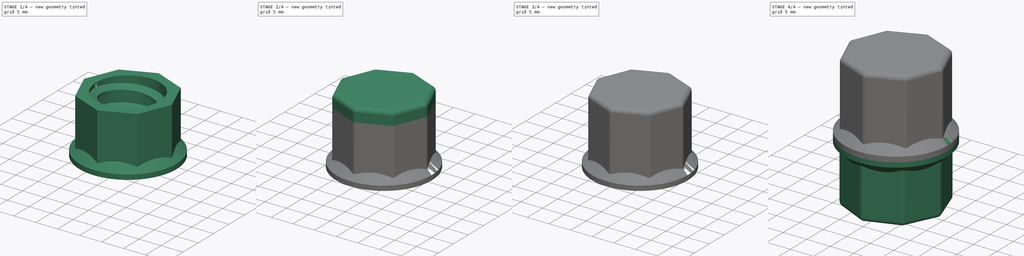
[diagram: build sequence overview — one tinted view per stage of 4, left to right]
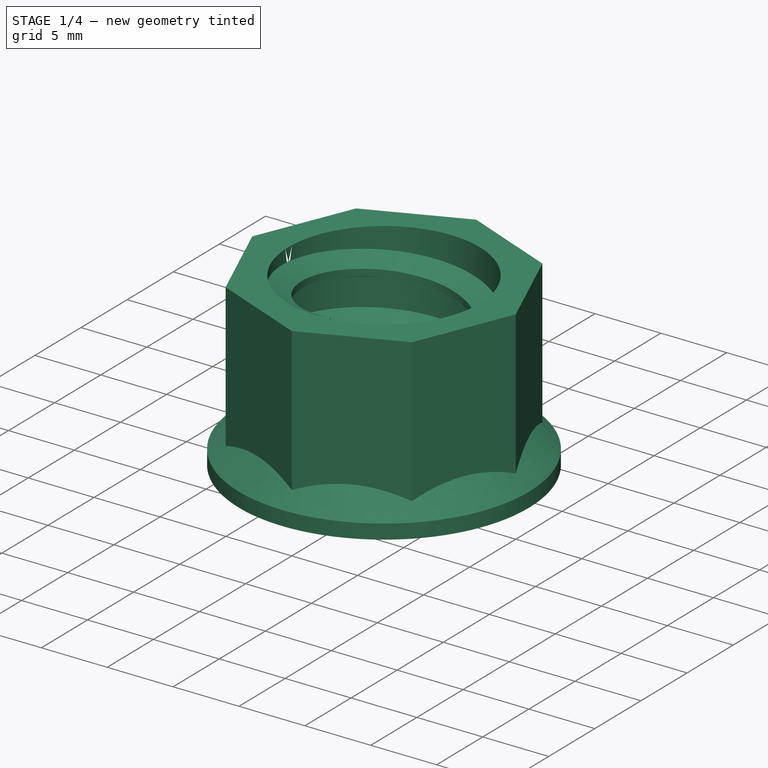
[diagram: stage 1 of 4 — iso view after this stage's code; geometry added in this stage tinted green]
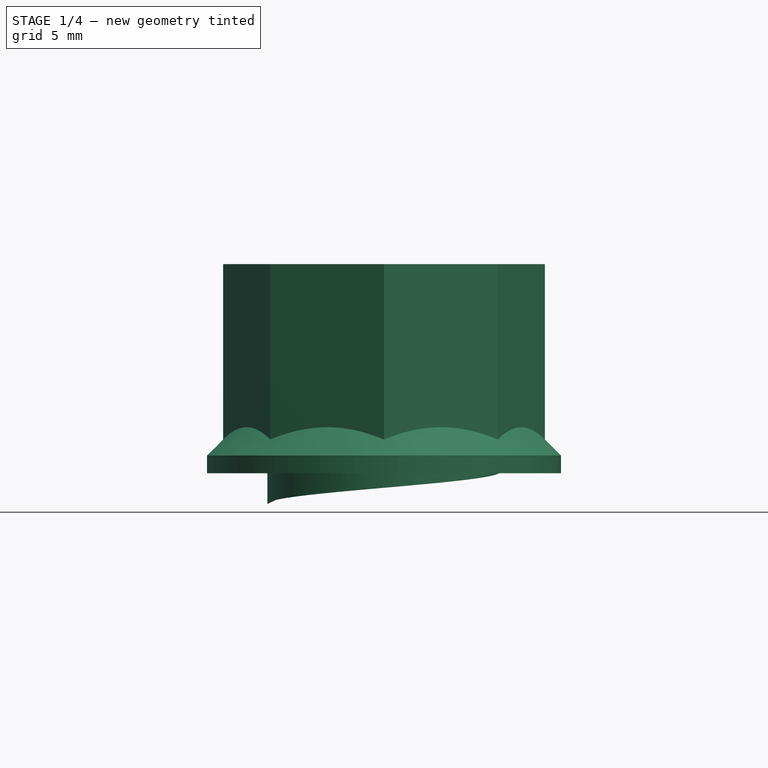
[diagram: stage 1 of 4 — front view after this stage's code; geometry added in this stage tinted green]
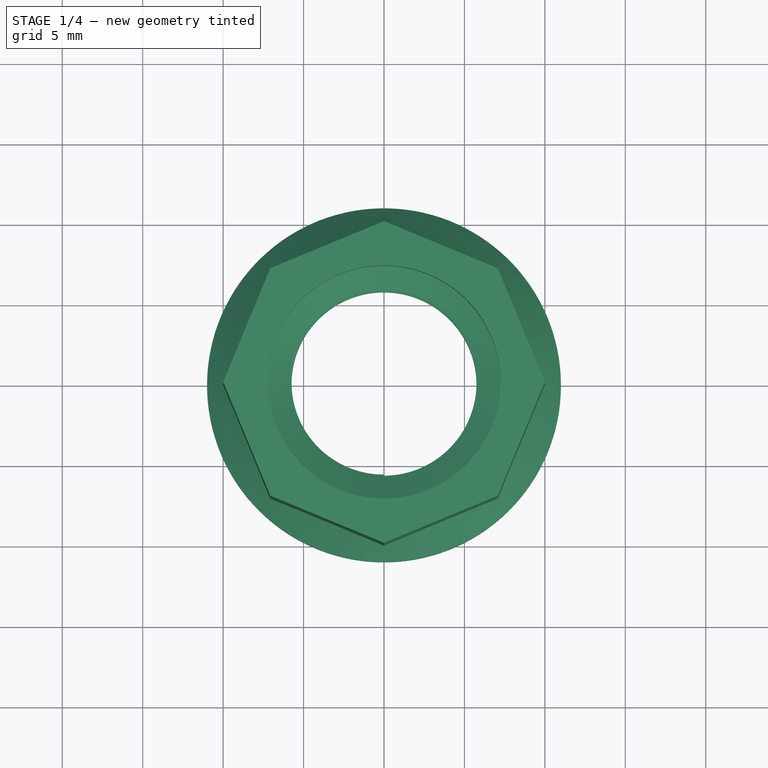
[diagram: stage 1 of 4 — top view after this stage's code; geometry added in this stage tinted green]
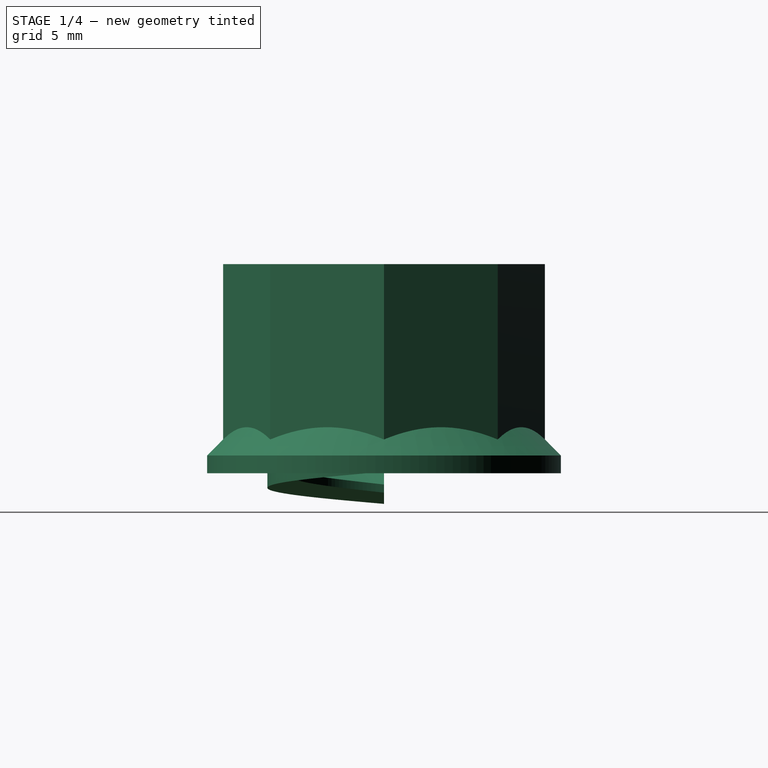
[diagram: stage 1 of 4 — right view after this stage's code; geometry added in this stage tinted green]
FCSTD DOCUMENT  (FreeCAD 2023.131R26244 +5365 (Git))
Label: Presto Pressure Cooker Hole Plug
License: All rights reserved
LicenseURL: http://en.wikipedia.org/wiki/All_rights_reserved
objects: Sketcher::SketchObject×9, PartDesign::Pad×6, PartDesign::Chamfer×3, PartDesign::Fillet×2, PartDesign::Body×2, Spreadsheet::Sheet×1, PartDesign::SubtractiveHelix×1, PartDesign::AdditiveHelix×1, PartDesign::Pocket×1
note: 62 computed .brp shape members not serialized (recipe doc carries the construction recipe); baked Part::Feature solids carry a one-line shape summary decoded from their .brp

FEATURE [Sketcher::SketchObject] Sketch004
  ArcFitTolerance = 1e-06
  AttachmentSupport = -> [XY_Plane001]
  ExternalBSplineMaxDegree = 5
  ExternalBSplineTolerance = 0.0001
  FullyConstrained = true
  InternalTolerance = 1e-06
  InvalidShape = false
  MakeInternals = false
  MapMode = 5
  Support = -> [XY_Plane001]
  TreeRank = 36
  ValidateShape = true
  expr: Constraints[1] = <<Parameters>>.washer_diameter
  expr: Constraints[3] = <<Parameters>>.shaft_diameter + <<Parameters>>.thread_tolerance
  sketch-geometry (2):
    g0: Circle CenterX=0 CenterY=0 CenterZ=0 NormalX=0 NormalY=0 NormalZ=1 AngleXU=0 Radius=11
    g1: Circle CenterX=0 CenterY=0 CenterZ=0 NormalX=0 NormalY=0 NormalZ=1 AngleXU=0 Radius=7.25
  constraints (4):
    c: Coincident(g0,g-1)
    c: Diameter(g0) = 22
    c: Coincident(g1,g0)
    c: Diameter(g1) = 14.5
FEATURE [PartDesign::Pad] Pad003
  AddSubType = 0
  AlongSketchNormal = false
  AutoTaperInnerAngle = true
  CheckUpToFaceLimits = true
  ClaimChildren = false
  Direction = (0,0,1)
  Fit = 0
  FitJoin = 0
  InnerFit = 0
  InnerFitJoin = 0
  InvalidShape = false
  Length = 3
  Length2 = 100
  Linearize = true
  NewSolid = false
  Profile = -> Sketch004
  Suppress = false
  TaperInnerAngle = 0
  TaperInnerAngleRev = 0
  TreeRank = 37
  Type = 0
  ValidateShape = true
  _ProfileBasedVersion = 1
  expr: Length = <<Parameters>>.washer_thickness
FEATURE [Sketcher::SketchObject] Sketch005
  ArcFitTolerance = 1e-06
  AttachmentSupport = -> [XY_Plane001]
  ExternalBSplineMaxDegree = 5
  ExternalBSplineTolerance = 0.0001
  FullyConstrained = true
  InternalTolerance = 1e-06
  InvalidShape = false
  MakeInternals = false
  MapMode = 5
  Support = -> [XY_Plane001]
  TreeRank = 38
  ValidateShape = true
  expr: Constraints[24] = <<Parameters>>.washer_diameter - 2
  expr: Constraints[26] = <<Parameters>>.shaft_diameter + <<Parameters>>.thread_tolerance
  sketch-geometry (10):
    g0: LineSegment StartX=-7.07107 StartY=7.07107 StartZ=0 EndX=-10 EndY=9e-16 EndZ=0
    g1: LineSegment StartX=-10 StartY=7e-16 StartZ=0 EndX=-7.07107 EndY=-7.07107 EndZ=0
    g2: LineSegment StartX=-7.07107 StartY=-7.07107 StartZ=0 EndX=-9e-16 EndY=-10 EndZ=0
    g3: LineSegment StartX=-8e-16 StartY=-10 StartZ=0 EndX=7.07107 EndY=-7.07107 EndZ=0
    g4: LineSegment StartX=7.07107 StartY=-7.07107 StartZ=0 EndX=10 EndY=0 EndZ=0
    g5: LineSegment StartX=10 StartY=0 StartZ=0 EndX=7.07107 EndY=7.07107 EndZ=0
    g6: LineSegment StartX=7.07107 StartY=7.07107 StartZ=0 EndX=0 EndY=10 EndZ=0
    g7: LineSegment StartX=0 StartY=10 StartZ=0 EndX=-7.07107 EndY=7.07107 EndZ=0
    g8: Circle [constr] CenterX=0 CenterY=0 CenterZ=0 NormalX=0 NormalY=0 NormalZ=1 AngleXU=0 Radius=10
    g9: Circle CenterX=0 CenterY=0 CenterZ=0 NormalX=0 NormalY=0 NormalZ=1 AngleXU=0 Radius=7.25
  constraints (22):
    c: Coincident(g0,g1)
    c: Coincident(g1,g2)
    c: Coincident(g2,g3)
    c: Coincident(g3,g4)
    c: Coincident(g4,g5)
    c: Coincident(g5,g6)
    c: Coincident(g6,g7)
    c: Coincident(g7,g0)
    c: Equal(g0, g1-g7) x7
    c: PointOnObject(g0,g8)
    c: PointOnObject(g1,g8)
    c: PointOnObject(g2,g8)
    c: PointOnObject(g3,g8)
    c: PointOnObject(g4,g8)
    c: PointOnObject(g5,g8)
    c: PointOnObject(g6,g8)
    c: PointOnObject(g7,g8)
    c: Coincident(g8,g-1)
    c: Diameter(g8) = 20
    c: Coincident(g9,g8)
    c: Diameter(g9) = 14.5
    c: PointOnObject(g6,g-2)
FEATURE [PartDesign::Chamfer] Chamfer002
  AddSubType = 0
  Angle = 45
  Base = -> Pad003 [Edge3]
  BaseFeature = -> Pad003
  ChamferType = 0
  FlipDirection = false
  InvalidShape = false
  NewSolid = false
  Size = 1.9
  Size2 = 1
  SupportTransform = false
  Suppress = false
  TreeRank = 43
  ValidateShape = true
FEATURE [PartDesign::Pad] Pad004
  AddSubType = 0
  AlongSketchNormal = false
  AutoTaperInnerAngle = true
  BaseFeature = -> Chamfer002
  CheckUpToFaceLimits = true
  ClaimChildren = false
  Direction = (0,0,1)
  Fit = 0
  FitJoin = 0
  InnerFit = 0
  InnerFitJoin = 0
  InvalidShape = false
  Length = 13
  Length2 = 100
  Linearize = true
  NewSolid = false
  Profile = -> Sketch005
  Suppress = false
  TaperInnerAngle = 0
  TaperInnerAngleRev = 0
  TreeRank = 44
  Type = 0
  ValidateShape = true
  _ProfileBasedVersion = 1
  expr: Length = <<Parameters>>.washer_thickness + <<Parameters>>.head_thickness
FEATURE [Sketcher::SketchObject] Sketch006
  ArcFitTolerance = 1e-06
  AttachmentSupport = -> [XZ_Plane001]
  ExternalBSplineMaxDegree = 5
  ExternalBSplineTolerance = 0.0001
  FullyConstrained = true
  InternalTolerance = 1e-06
  InvalidShape = false
  MakeInternals = false
  MapMode = 5
  Placement = pos=(0,0,0) rot=(1,0,0;1.5708rad)
  Support = -> [XZ_Plane001]
  TreeRank = 50
  ValidateShape = true
  expr: Constraints[10] = (<<Parameters>>.shaft_diameter + <<Parameters>>.thread_tolerance) / 2
  expr: Constraints[7] = <<Parameters>>.thread_depth
  expr: Constraints[8] = <<Parameters>>.thread_pitch / 2.1
  expr: Constraints[9] = 90 - <<Parameters>>.thread_angle
  sketch-geometry (4):
    g0: LineSegment StartX=-7.25 StartY=-1.90476 StartZ=0 EndX=-7.25 EndY=0 EndZ=0
    g1: LineSegment StartX=-7.25 StartY=0 StartZ=0 EndX=-5.75 EndY=-0.699461 EndZ=0
    g2: LineSegment StartX=-7.25 StartY=-1.90476 StartZ=0 EndX=-5.75 EndY=-1.2053 EndZ=0
    g3: LineSegment StartX=-5.75 StartY=-1.2053 StartZ=0 EndX=-5.75 EndY=-0.699461 EndZ=0
  constraints (12):
    c: Vertical(g0)
    c: Coincident(g1,g0)
    c: Coincident(g2,g0)
    c: Coincident(g3,g2)
    c: Coincident(g3,g1)
    c: Vertical(g3)
    c: Equal(g2,g1)
    c: DistanceX(g0,g1) = 1.5
    c: DistanceY(g0,g0) = 1.90476
    c: Angle(g0,g1) = 1.13446
    c: DistanceX(g0,g-1) = 7.25
    c: DistanceY(g0,g-1) = 0
FEATURE [PartDesign::AdditiveHelix] Helix001
  AddSubType = 0
  Angle = 0
  Axis = (0,2e-16,1)
  Base = (0,0,0)
  BaseFeature = -> Pad004
  ClaimChildren = false
  Fit = 0
  FitJoin = 0
  FixShape = 2
  Growth = 0
  HasBeenEdited = true
  Height = 13
  InnerFit = 0
  InnerFitJoin = 0
  InvalidShape = false
  LeftHanded = false
  Linearize = true
  Mode = 0
  NewSolid = false
  Outside = false
  Pitch = 4
  Profile = -> Sketch006
  ReferenceAxis = -> Sketch006 [V_Axis]
  Suppress = false
  TreeRank = 51
  Turns = 3.25
  ValidateShape = true
  _ProfileBasedVersion = 1
  expr: Height = <<Parameters>>.head_thickness + <<Parameters>>.washer_thickness
  expr: Pitch = <<Parameters>>.thread_pitch
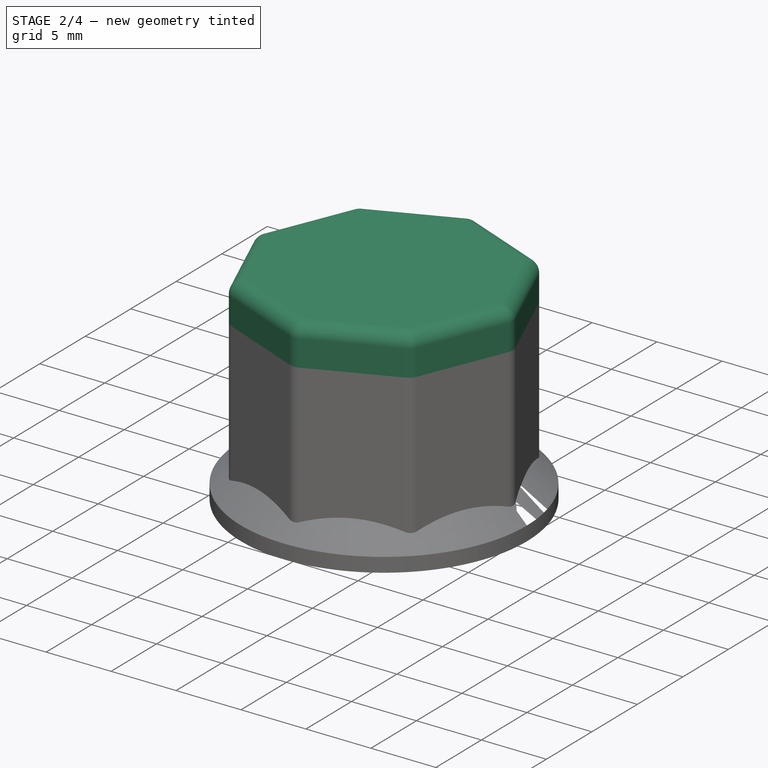
[diagram: stage 2 of 4 — iso view after this stage's code; geometry added in this stage tinted green]
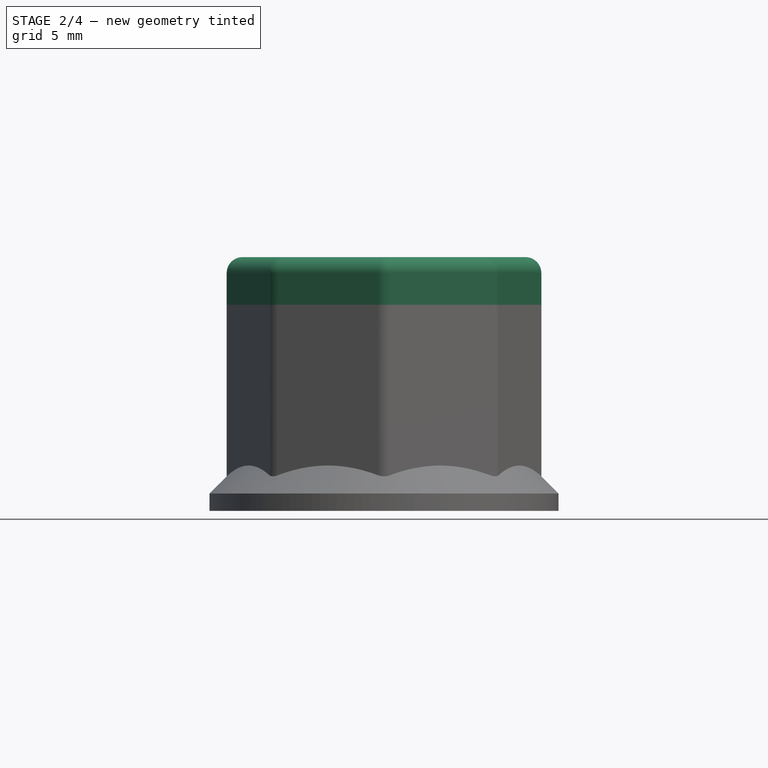
[diagram: stage 2 of 4 — front view after this stage's code; geometry added in this stage tinted green]
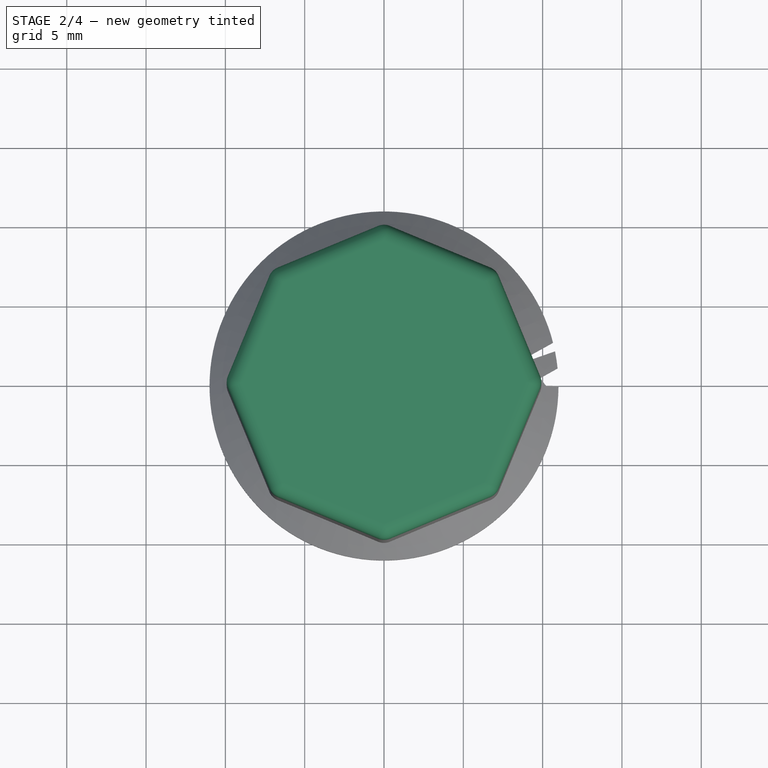
[diagram: stage 2 of 4 — top view after this stage's code; geometry added in this stage tinted green]
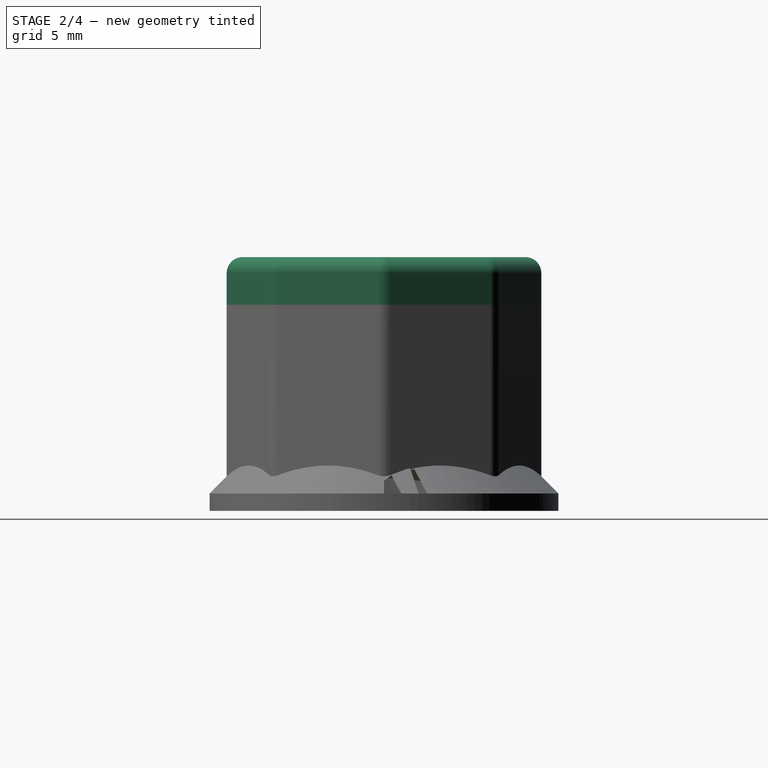
[diagram: stage 2 of 4 — right view after this stage's code; geometry added in this stage tinted green]
FEATURE [Sketcher::SketchObject] Sketch007
  ArcFitTolerance = 1e-06
  AttachmentSupport = -> [XZ_Plane001]
  ExternalBSplineMaxDegree = 5
  ExternalBSplineTolerance = 0.0001
  FullyConstrained = true
  InternalTolerance = 1e-06
  InvalidShape = false
  MakeInternals = false
  MapMode = 5
  Placement = pos=(0,0,0) rot=(1,0,0;1.5708rad)
  Support = -> [XZ_Plane001]
  TreeRank = 52
  ValidateShape = true
  expr: Constraints[10] = <<Parameters>>.washer_diameter
  expr: Constraints[8] = <<Parameters>>.thread_pitch
  sketch-geometry (4):
    g0: LineSegment StartX=-11 StartY=0 StartZ=0 EndX=11 EndY=0 EndZ=0
    g1: LineSegment StartX=11 StartY=0 StartZ=0 EndX=11 EndY=-4 EndZ=0
    g2: LineSegment StartX=11 StartY=-4 StartZ=0 EndX=-11 EndY=-4 EndZ=0
    g3: LineSegment StartX=-11 StartY=-4 StartZ=0 EndX=-11 EndY=0 EndZ=0
  constraints (11):
    c: Coincident(g0,g1)
    c: Coincident(g1,g2)
    c: Coincident(g2,g3)
    c: Coincident(g3,g0)
    c: Horizontal(g0)
    c: Horizontal(g2)
    c: Vertical(g1)
    c: Vertical(g3)
    c: DistanceY(g1,g0) = 4
    c: Symmetric(g0,g0,g-1)
    c: DistanceX(g0,g0) = 22
FEATURE [PartDesign::Pocket] Pocket
  AddSubType = 1
  AutoTaperInnerAngle = true
  BaseFeature = -> Helix001
  CheckUpToFaceLimits = true
  ClaimChildren = false
  Fit = 0
  FitJoin = 0
  InnerFit = 0
  InnerFitJoin = 0
  InvalidShape = false
  Length = 100
  Length2 = 100
  Linearize = true
  NewSolid = false
  Profile = -> Sketch007
  Suppress = false
  TaperInnerAngle = 0
  TaperInnerAngleRev = 0
  TreeRank = 53
  Type = 4
  ValidateShape = true
  _ProfileBasedVersion = 1
  _Version = 1
FEATURE [PartDesign::Body] Body  label="A"
  AutoGroupSolids = false
  ClaimAllChildren = false
  ExportMode = 0
  Group = -> [Sketch,Pad,Sketch001,Chamfer,Helix,Pad001,Chamfer003,Sketch002,Sketch003,Pad005,Fillet001]
  InvalidShape = false
  Origin = -> Origin
  Tip = -> Fillet001
  TreeRank = 11
  ValidateShape = true
  _ExportChildren = -> [Pad,Chamfer,Helix,Pad001,Chamfer003,Pad005,Fillet001]
  _GroupVersion = 1
FEATURE [Sketcher::SketchObject] Sketch008
  ArcFitTolerance = 1e-06
  AttachmentSupport = -> [Pocket]
  ExternalBSplineMaxDegree = 5
  ExternalBSplineTolerance = 0.0001
  FullyConstrained = true
  InternalTolerance = 1e-06
  InvalidShape = false
  MakeInternals = false
  MapMode = 5
  Placement = pos=(0,0,13) rot=(0,0,1;0rad)
  Support = -> [Pocket]
  TreeRank = 56
  ValidateShape = true
  expr: Constraints[24] = <<Parameters>>.washer_diameter - 2
  sketch-geometry (9):
    g0: LineSegment StartX=-7.07107 StartY=7.07107 StartZ=0 EndX=-10 EndY=-4.4e-15 EndZ=0
    g1: LineSegment StartX=-10 StartY=-4.8e-15 StartZ=0 EndX=-7.07107 EndY=-7.07107 EndZ=0
    g2: LineSegment StartX=-7.07107 StartY=-7.07107 StartZ=0 EndX=6.2e-15 EndY=-10 EndZ=0
    g3: LineSegment StartX=6.1e-15 StartY=-10 StartZ=0 EndX=7.07107 EndY=-7.07107 EndZ=0
    g4: LineSegment StartX=7.07107 StartY=-7.07107 StartZ=0 EndX=10 EndY=8.9e-15 EndZ=0
    g5: LineSegment StartX=10 StartY=8.7e-15 StartZ=0 EndX=7.07107 EndY=7.07107 EndZ=0
    g6: LineSegment StartX=7.07107 StartY=7.07107 StartZ=0 EndX=0 EndY=10 EndZ=0
    g7: LineSegment StartX=0 StartY=10 StartZ=0 EndX=-7.07107 EndY=7.07107 EndZ=0
    g8: Circle [constr] CenterX=0 CenterY=0 CenterZ=0 NormalX=0 NormalY=0 NormalZ=1 AngleXU=0 Radius=10
  constraints (20):
    c: Coincident(g0,g1)
    c: Coincident(g1,g2)
    c: Coincident(g2,g3)
    c: Coincident(g3,g4)
    c: Coincident(g4,g5)
    c: Coincident(g5,g6)
    c: Coincident(g6,g7)
    c: Coincident(g7,g0)
    c: Equal(g0, g1-g7) x7
    c: PointOnObject(g0,g8)
    c: PointOnObject(g1,g8)
    c: PointOnObject(g2,g8)
    c: PointOnObject(g3,g8)
    c: PointOnObject(g4,g8)
    c: PointOnObject(g5,g8)
    c: PointOnObject(g6,g8)
    c: PointOnObject(g7,g8)
    c: Coincident(g8,g-1)
    c: Diameter(g8) = 20
    c: PointOnObject(g6,g-2)
FEATURE [PartDesign::Pad] Pad006
  AddSubType = 0
  AlongSketchNormal = false
  AutoTaperInnerAngle = true
  BaseFeature = -> Pocket
  CheckUpToFaceLimits = true
  ClaimChildren = false
  Direction = (0,0,1)
  Fit = 0
  FitJoin = 0
  InnerFit = 0
  InnerFitJoin = 0
  InvalidShape = false
  Length = 3
  Length2 = 100
  Linearize = true
  NewSolid = false
  Profile = -> Sketch008
  Suppress = false
  TaperInnerAngle = 0
  TaperInnerAngleRev = 0
  TreeRank = 57
  Type = 0
  ValidateShape = true
  _ProfileBasedVersion = 1
  expr: Length = <<Parameters>>.thickness
FEATURE [PartDesign::Fillet] Fillet
  AddSubType = 0
  Base = -> Pad006 [Face30,Edge34,Edge36,Edge38,Edge28,Edge25,Edge32,Edge30,Edge27]
  BaseFeature = -> Pad006
  InvalidShape = false
  NewSolid = false
  Radius = 1
  SupportTransform = false
  Suppress = false
  TreeRank = 58
  ValidateShape = true
FEATURE [PartDesign::Body] Body001  label="B"
  AutoGroupSolids = false
  ClaimAllChildren = false
  ExportMode = 0
  FixShape = 1
  Group = -> [Sketch004,Pad003,Chamfer002,Sketch005,Pad004,Sketch006,Helix001,Sketch007,Pocket,Sketch008,Pad006,Fillet]
  InvalidShape = false
  Origin = -> Origin001
  Tip = -> Fillet
  TreeRank = 35
  ValidateShape = true
  _ExportChildren = -> [Pad003,Chamfer002,Pad004,Helix001,Pocket,Pad006,Fillet]
  _GroupVersion = 1
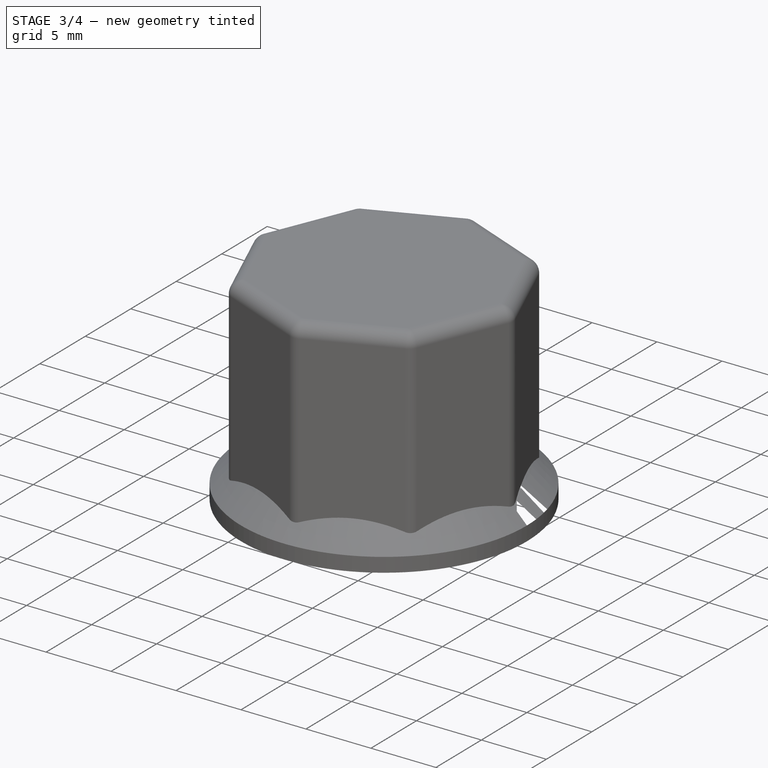
[diagram: stage 3 of 4 — iso view after this stage's code; geometry added in this stage tinted green]
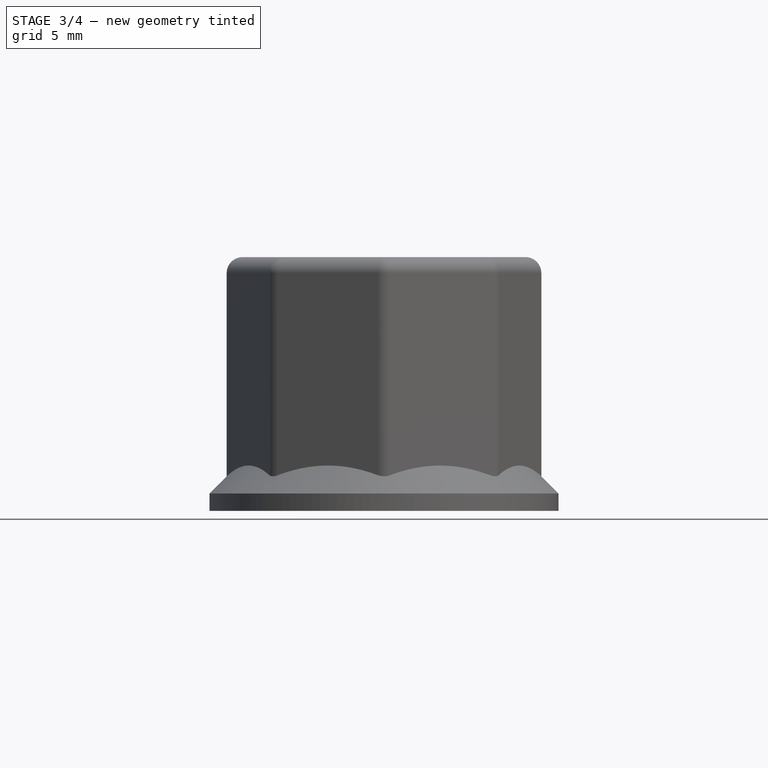
[diagram: stage 3 of 4 — front view after this stage's code; geometry added in this stage tinted green]
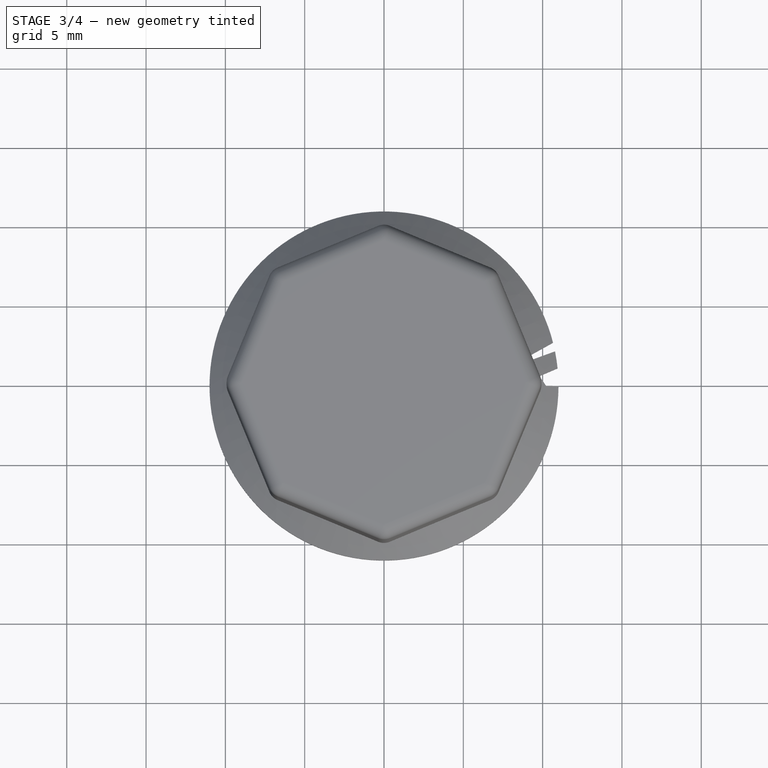
[diagram: stage 3 of 4 — top view after this stage's code; geometry added in this stage tinted green]
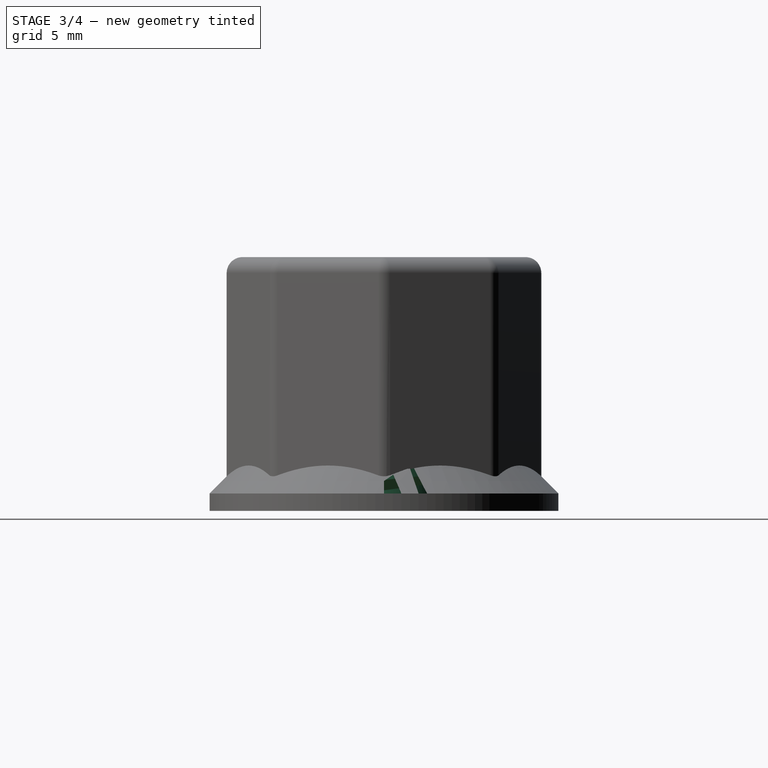
[diagram: stage 3 of 4 — right view after this stage's code; geometry added in this stage tinted green]
FEATURE [Sketcher::SketchObject] Sketch
  ArcFitTolerance = 1e-06
  AttachmentSupport = -> [XY_Plane]
  ExternalBSplineMaxDegree = 5
  ExternalBSplineTolerance = 0.0001
  FullyConstrained = true
  InternalTolerance = 1e-06
  InvalidShape = false
  MakeInternals = false
  MapMode = 5
  Support = -> [XY_Plane]
  TreeRank = 12
  ValidateShape = true
  expr: Constraints[1] = <<Parameters>>.shaft_diameter
  sketch-geometry (1):
    g0: Circle CenterX=0 CenterY=0 CenterZ=0 NormalX=0 NormalY=0 NormalZ=1 AngleXU=0 Radius=6.25
  constraints (2):
    c: Coincident(g0,g-1)
    c: Diameter(g0) = 12.5
FEATURE [PartDesign::Pad] Pad
  AddSubType = 0
  AlongSketchNormal = false
  AutoTaperInnerAngle = true
  CheckUpToFaceLimits = true
  ClaimChildren = false
  Direction = (0,0,1)
  Fit = 0
  FitJoin = 0
  InnerFit = 0
  InnerFitJoin = 0
  InvalidShape = false
  Length = 14
  Length2 = 100
  Linearize = true
  NewSolid = false
  Profile = -> Sketch
  Suppress = false
  TaperInnerAngle = 0
  TaperInnerAngleRev = 0
  TreeRank = 13
  Type = 0
  ValidateShape = true
  _ProfileBasedVersion = 1
  expr: Length = <<Parameters>>.shaft_length
FEATURE [Sketcher::SketchObject] Sketch001
  ArcFitTolerance = 1e-06
  AttachmentSupport = -> [XY_Plane]
  ExternalBSplineMaxDegree = 5
  ExternalBSplineTolerance = 0.0001
  FullyConstrained = true
  InternalTolerance = 1e-06
  InvalidShape = false
  MakeInternals = false
  MapMode = 5
  Support = -> [XY_Plane]
  TreeRank = 14
  ValidateShape = true
  expr: Constraints[1] = <<Parameters>>.washer_diameter
  sketch-geometry (1):
    g0: Circle CenterX=0 CenterY=0 CenterZ=0 NormalX=0 NormalY=0 NormalZ=1 AngleXU=0 Radius=11
  constraints (2):
    c: Coincident(g0,g-1)
    c: Diameter(g0) = 22
FEATURE [Sketcher::SketchObject] Sketch002
  ArcFitTolerance = 1e-06
  AttachmentSupport = -> [XY_Plane]
  ExternalBSplineMaxDegree = 5
  ExternalBSplineTolerance = 0.0001
  FullyConstrained = false
  InternalTolerance = 1e-06
  InvalidShape = false
  MakeInternals = false
  MapMode = 5
  Support = -> [XY_Plane]
  TreeRank = 16
  ValidateShape = true
  expr: Constraints[24] = <<Parameters>>.washer_diameter - 2
  sketch-geometry (9):
    g0: LineSegment StartX=-6.70258 StartY=7.42128 StartZ=0 EndX=-9.98708 EndY=0.5082 EndZ=0
    g1: LineSegment StartX=-9.98708 StartY=0.5082 StartZ=0 EndX=-7.42128 EndY=-6.70258 EndZ=0
    g2: LineSegment StartX=-7.42128 StartY=-6.70258 StartZ=0 EndX=-0.5082 EndY=-9.98708 EndZ=0
    g3: LineSegment StartX=-0.5082 StartY=-9.98708 StartZ=0 EndX=6.70258 EndY=-7.42128 EndZ=0
    g4: LineSegment StartX=6.70258 StartY=-7.42128 StartZ=0 EndX=9.98708 EndY=-0.5082 EndZ=0
    g5: LineSegment StartX=9.98708 StartY=-0.5082 StartZ=0 EndX=7.42128 EndY=6.70258 EndZ=0
    g6: LineSegment StartX=7.42128 StartY=6.70258 StartZ=0 EndX=0.5082 EndY=9.98708 EndZ=0
    g7: LineSegment StartX=0.5082 StartY=9.98708 StartZ=0 EndX=-6.70258 EndY=7.42128 EndZ=0
    g8: Circle [constr] CenterX=0 CenterY=0 CenterZ=0 NormalX=0 NormalY=0 NormalZ=1 AngleXU=0 Radius=10
  constraints (19):
    c: Coincident(g0,g1)
    c: Coincident(g1,g2)
    c: Coincident(g2,g3)
    c: Coincident(g3,g4)
    c: Coincident(g4,g5)
    c: Coincident(g5,g6)
    c: Coincident(g6,g7)
    c: Coincident(g7,g0)
    c: Equal(g0, g1-g7) x7
    c: PointOnObject(g0,g8)
    c: PointOnObject(g1,g8)
    c: PointOnObject(g2,g8)
    c: PointOnObject(g3,g8)
    c: PointOnObject(g4,g8)
    c: PointOnObject(g5,g8)
    c: PointOnObject(g6,g8)
    c: PointOnObject(g7,g8)
    c: Coincident(g8,g-1)
    c: Diameter(g8) = 20
FEATURE [Spreadsheet::Sheet] Spreadsheet  label="Parameters"
  PythonMode = false
  ShowCells = 0
  TreeRank = 10
  cells = A1=Thickness; B1(thickness)=3; A3=Thread Pitch; B3(thread_pitch)=4; A4=Thread Depth; B4(thread_depth)=1.5; A5=Thread Angle; B5(thread_angle)=25; A6=Thread Tollerance; B6(thread_tolerance)=2; A8=Bolt Shaft Diameter; B8(shaft_diameter)=12.5; A9=Bolt Shaft Length; B9(shaft_length)=14; A10=Washer Thickness; B10(washer_thickness)=3; A11=Washer Diameter; B11(washer_diameter)=22; A12=Head Thickness; B12(head_thickness)=10
FEATURE [Sketcher::SketchObject] Sketch003
  ArcFitTolerance = 1e-06
  AttachmentSupport = -> [XZ_Plane]
  ExternalBSplineMaxDegree = 5
  ExternalBSplineTolerance = 0.0001
  FullyConstrained = true
  InternalTolerance = 1e-06
  InvalidShape = false
  MakeInternals = false
  MapMode = 5
  Placement = pos=(0,0,0) rot=(1,0,0;1.5708rad)
  Support = -> [XZ_Plane]
  TreeRank = 21
  ValidateShape = true
  expr: Constraints[10] = <<Parameters>>.shaft_diameter / 2 + 0.1
  expr: Constraints[7] = <<Parameters>>.thread_depth
  expr: Constraints[8] = <<Parameters>>.thread_pitch / 1.9
  expr: Constraints[9] = 90 - <<Parameters>>.thread_angle
  sketch-geometry (4):
    g0: LineSegment StartX=-6.35 StartY=0 StartZ=0 EndX=-6.35 EndY=-2.10526 EndZ=0
    g1: LineSegment StartX=-6.35 StartY=0 StartZ=0 EndX=-4.85 EndY=-0.699461 EndZ=0
    g2: LineSegment StartX=-6.35 StartY=-2.10526 StartZ=0 EndX=-4.85 EndY=-1.4058 EndZ=0
    g3: LineSegment StartX=-4.85 StartY=-0.699461 StartZ=0 EndX=-4.85 EndY=-1.4058 EndZ=0
  constraints (12):
    c: Vertical(g0)
    c: Coincident(g1,g0)
    c: Coincident(g2,g0)
    c: Coincident(g3,g1)
    c: Coincident(g3,g2)
    c: Vertical(g3)
    c: Equal(g1,g2)
    c: DistanceX(g0,g1) = 1.5
    c: DistanceY(g0,g0) = 2.10526
    c: Angle(g0,g1) = 1.13446
    c: DistanceX(g0,g-1) = 6.35
    c: DistanceY(g-1,g0) = 0
FEATURE [PartDesign::Chamfer] Chamfer
  AddSubType = 0
  Angle = 45
  Base = -> Pad [Edge3]
  BaseFeature = -> Pad
  ChamferType = 0
  FlipDirection = false
  InvalidShape = false
  NewSolid = false
  Size = 1
  Size2 = 1
  SupportTransform = false
  Suppress = false
  TreeRank = 23
  ValidateShape = true
FEATURE [PartDesign::SubtractiveHelix] Helix
  AddSubType = 1
  Angle = 0
  Axis = (0,2e-16,1)
  Base = (0,0,0)
  BaseFeature = -> Chamfer
  ClaimChildren = false
  Fit = 0
  FitJoin = 0
  Growth = 0
  HasBeenEdited = true
  Height = 28
  InnerFit = 0
  InnerFitJoin = 0
  InvalidShape = false
  LeftHanded = false
  Linearize = true
  Mode = 0
  NewSolid = false
  Outside = false
  Pitch = 4
  Profile = -> Sketch003
  ReferenceAxis = -> Sketch003 [V_Axis]
  Suppress = false
  TreeRank = 22
  Turns = 7
  ValidateShape = true
  _ProfileBasedVersion = 1
  expr: Height = <<Parameters>>.shaft_length * 2
  expr: Pitch = <<Parameters>>.thread_pitch
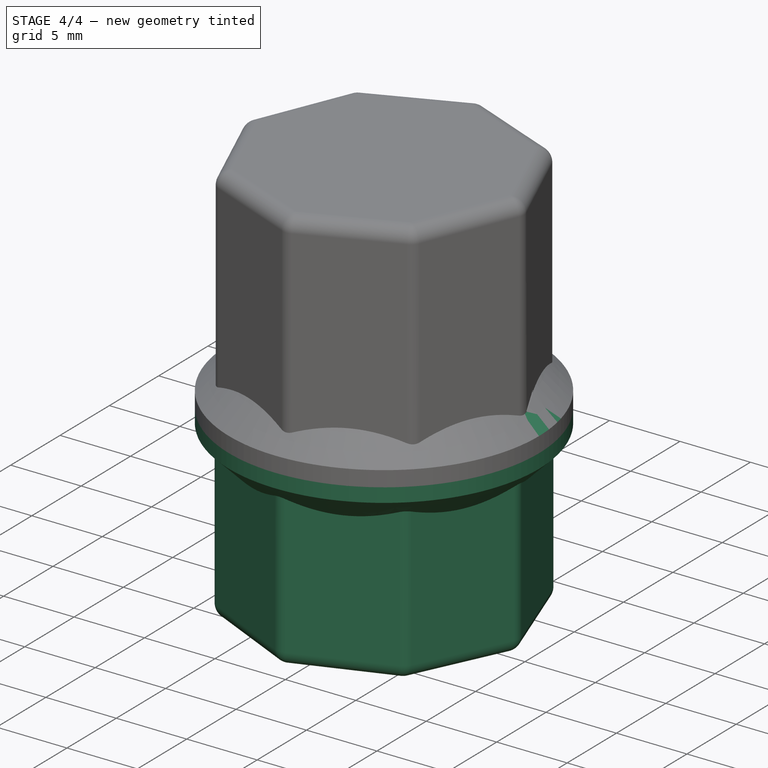
[diagram: stage 4 of 4 — iso view after this stage's code; geometry added in this stage tinted green]
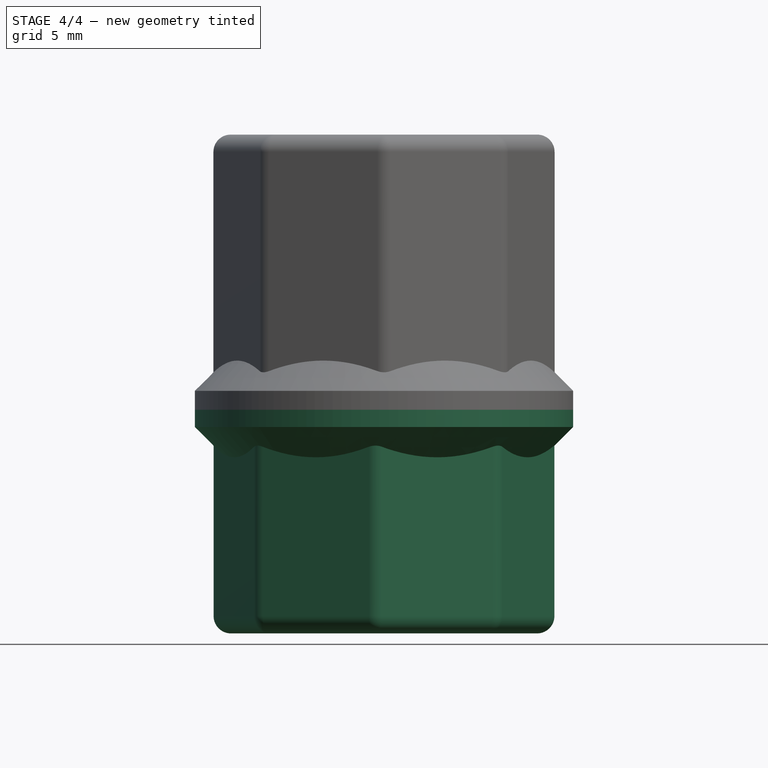
[diagram: stage 4 of 4 — front view after this stage's code; geometry added in this stage tinted green]
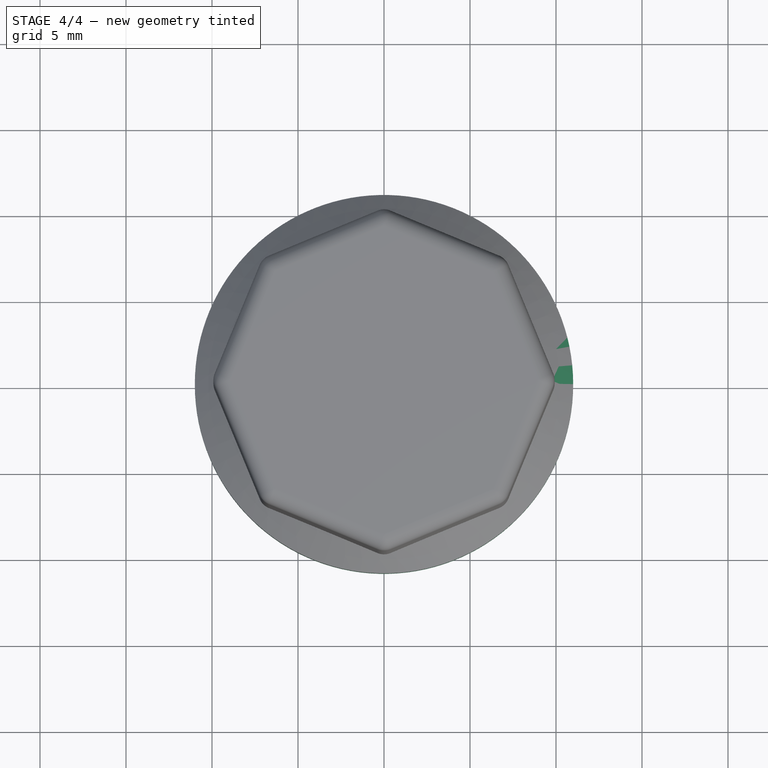
[diagram: stage 4 of 4 — top view after this stage's code; geometry added in this stage tinted green]
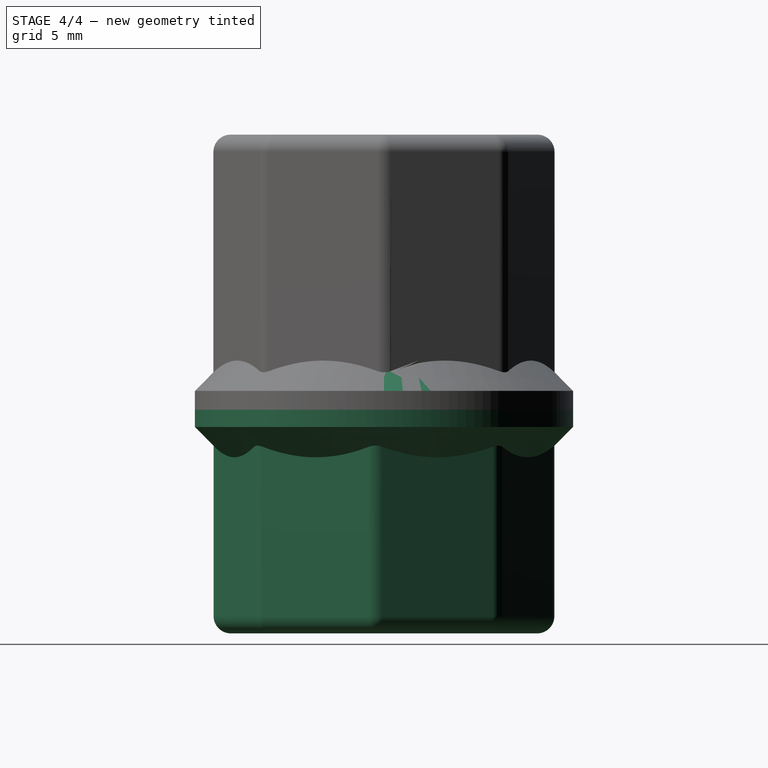
[diagram: stage 4 of 4 — right view after this stage's code; geometry added in this stage tinted green]
FEATURE [PartDesign::Pad] Pad001
  AddSubType = 0
  AlongSketchNormal = false
  AutoTaperInnerAngle = true
  BaseFeature = -> Helix
  CheckUpToFaceLimits = true
  ClaimChildren = false
  Direction = (0,0,1)
  Fit = 0
  FitJoin = 0
  InnerFit = 0
  InnerFitJoin = 0
  InvalidShape = false
  Length = 3
  Length2 = 100
  Linearize = true
  NewSolid = false
  Profile = -> Sketch001
  Reversed = true
  Suppress = false
  TaperInnerAngle = 0
  TaperInnerAngleRev = 0
  TreeRank = 15
  Type = 0
  ValidateShape = true
  _ProfileBasedVersion = 1
  expr: Length = <<Parameters>>.washer_thickness
FEATURE [PartDesign::Chamfer] Chamfer003
  AddSubType = 0
  Angle = 45
  Base = -> Pad001 [Edge33]
  BaseFeature = -> Pad001
  ChamferType = 0
  FlipDirection = false
  InvalidShape = false
  NewSolid = false
  Size = 2
  Size2 = 1
  SupportTransform = false
  Suppress = false
  TreeRank = 48
  ValidateShape = true
FEATURE [PartDesign::Pad] Pad005
  AddSubType = 0
  AlongSketchNormal = false
  AutoTaperInnerAngle = true
  BaseFeature = -> Chamfer003
  CheckUpToFaceLimits = true
  ClaimChildren = false
  Direction = (0,0,1)
  Fit = 0
  FitJoin = 0
  InnerFit = 0
  InnerFitJoin = 0
  InvalidShape = false
  Length = 13
  Length2 = 100
  Linearize = true
  NewSolid = false
  Profile = -> Sketch002
  Reversed = true
  Suppress = false
  TaperInnerAngle = 0
  TaperInnerAngleRev = 0
  TreeRank = 49
  Type = 0
  ValidateShape = true
  _ProfileBasedVersion = 1
  expr: Length = <<Parameters>>.washer_thickness + <<Parameters>>.head_thickness
FEATURE [PartDesign::Fillet] Fillet001
  AddSubType = 0
  Base = -> Pad005 [Face13,Edge33,Edge31,Edge29,Edge35,Edge24,Edge22,Edge25,Edge27]
  BaseFeature = -> Pad005
  InvalidShape = false
  NewSolid = false
  Radius = 1
  SupportTransform = false
  Suppress = false
  TreeRank = 55
  ValidateShape = true
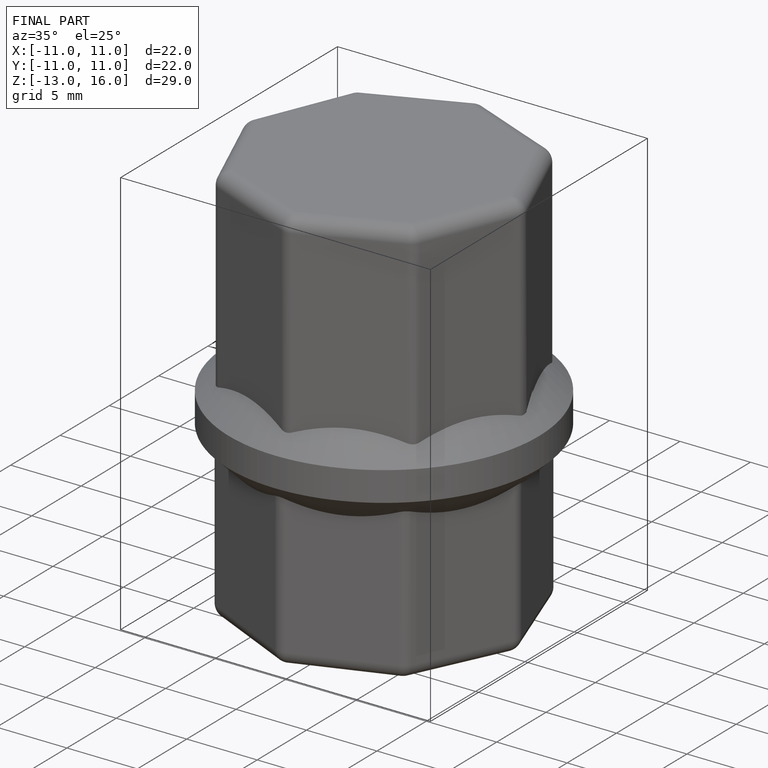
[diagram: finished part — iso view with bounding-box wireframe]
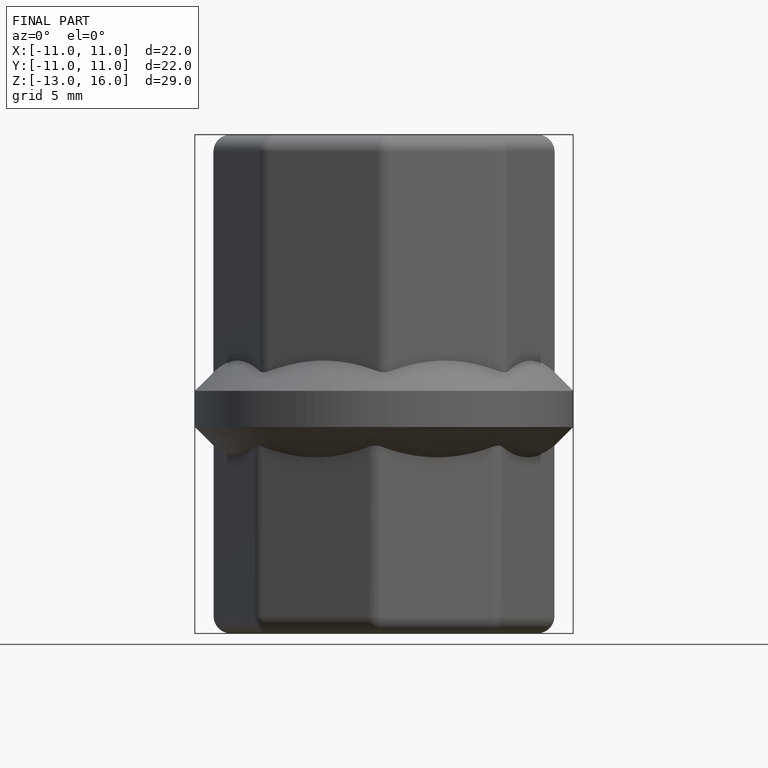
[diagram: finished part — front view with bounding-box wireframe]
